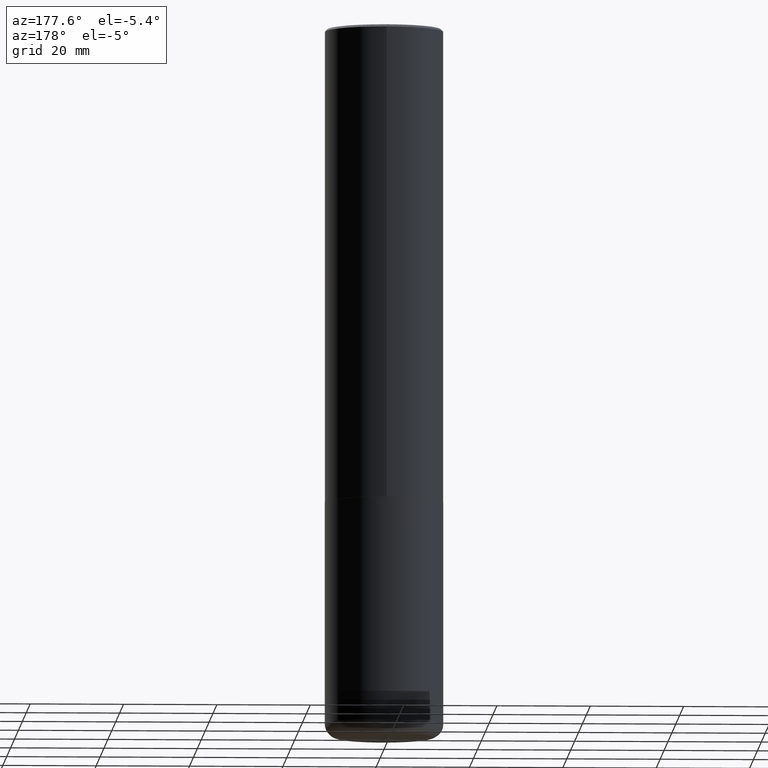
[diagram: clean part render]
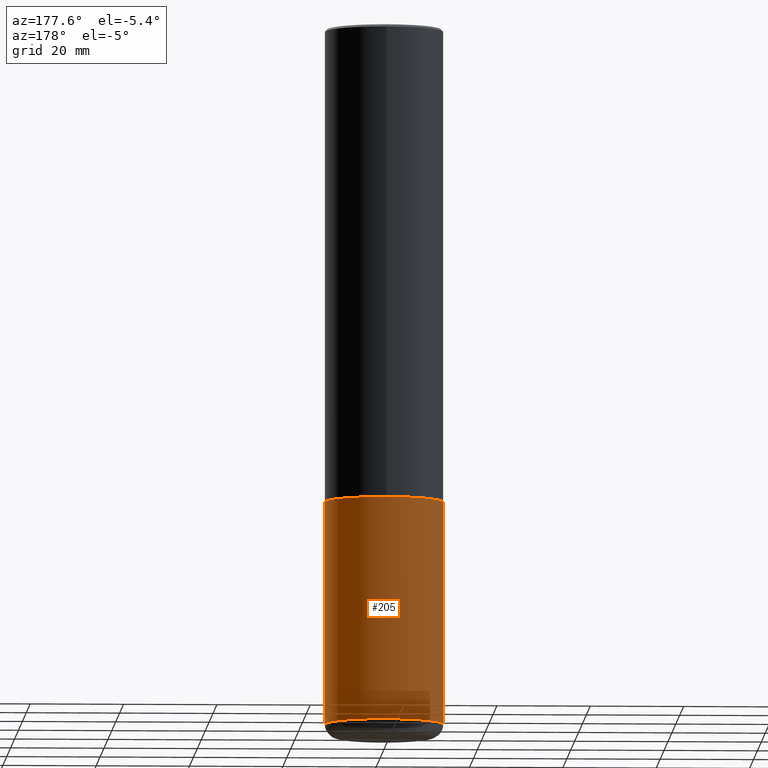
[diagram: same view with one face highlighted and labeled with its STEP entity id]
A machine part, auxiliary view. The second image highlights one B-rep face of the part: STEP entity #205.
In plain terms, the highlighted cylindrical surface (partial cylindrical patch) has radius 12.7 mm, axis along (-0, 0, 1).
Its self-contained STEP definition (entity closure, byte-faithful):
#12 = AXIS2_PLACEMENT_3D ( 'NONE', #50, #356, #73 ) ;
#21 = DIRECTION ( 'NONE',  ( -2.445468806185136597E-29, 3.491481338843145583E-15, 1.000000000000000000 ) ) ;
#40 = CIRCLE ( 'NONE', #68, 0.5000000000000000000 ) ;
#45 = EDGE_CURVE ( 'NONE', #239, #100, #370, .T. ) ;
#48 = DIRECTION ( 'NONE',  ( -2.445468806185136877E-29, 3.491481338843145188E-15, 1.000000000000000000 ) ) ;
#49 = ORIENTED_EDGE ( 'NONE', *, *, #85, .T. ) ;
#50 = CARTESIAN_POINT ( 'NONE',  ( 9.781875224740546387E-29, -1.396592535537258233E-14, -4.000000000000000000 ) ) ;
#51 = EDGE_CURVE ( 'NONE', #411, #239, #145, .T. ) ;
#59 = FACE_OUTER_BOUND ( 'NONE', #77, .T. ) ;
#64 = VERTEX_POINT ( 'NONE', #331 ) ;
#68 = AXIS2_PLACEMENT_3D ( 'NONE', #118, #184, #306 ) ;
#73 = DIRECTION ( 'NONE',  ( 1.000000000000000000, -6.982962677686266711E-15, 0.000000000000000000 ) ) ;
#77 = EDGE_LOOP ( 'NONE', ( #245, #49, #218, #273 ) ) ;
#85 = EDGE_CURVE ( 'NONE', #64, #100, #366, .T. ) ;
#98 = CARTESIAN_POINT ( 'NONE',  ( 0.5000000000000002220, -2.402139161124082943E-14, -5.880000000000000782 ) ) ;
#100 = VERTEX_POINT ( 'NONE', #296 ) ;
#118 = CARTESIAN_POINT ( 'NONE',  ( 1.437935658036860328E-28, -2.052991027239769923E-14, -5.880000000000000782 ) ) ;
#145 = LINE ( 'NONE', #177, #272 ) ;
#151 = CYLINDRICAL_SURFACE ( 'NONE', #209, 0.5000000000000000000 ) ;
#156 = CARTESIAN_POINT ( 'NONE',  ( 0.5000000000000000000, -1.745740669421571411E-14, -4.000000000000000000 ) ) ;
#177 = CARTESIAN_POINT ( 'NONE',  ( 0.5000000000000000000, -3.491481338843133355E-15, 2.438088387897967896E-29 ) ) ;
#180 = VECTOR ( 'NONE', #48, 39.37007874015748143 ) ;
#184 = DIRECTION ( 'NONE',  ( -2.445468806185136597E-29, 3.491481338843145583E-15, 1.000000000000000000 ) ) ;
#205 = ADVANCED_FACE ( 'NONE', ( #59 ), #151, .T. ) ;
#209 = AXIS2_PLACEMENT_3D ( 'NONE', #303, #21, #405 ) ;
#218 = ORIENTED_EDGE ( 'NONE', *, *, #45, .F. ) ;
#230 = DIRECTION ( 'NONE',  ( -2.445468806185136877E-29, 3.491481338843145188E-15, 1.000000000000000000 ) ) ;
#239 = VERTEX_POINT ( 'NONE', #156 ) ;
#245 = ORIENTED_EDGE ( 'NONE', *, *, #317, .T. ) ;
#272 = VECTOR ( 'NONE', #230, 39.37007874015748143 ) ;
#273 = ORIENTED_EDGE ( 'NONE', *, *, #51, .F. ) ;
#296 = CARTESIAN_POINT ( 'NONE',  ( -0.5000000000000000000, -1.369520413508463906E-14, -4.000000000000000000 ) ) ;
#303 = CARTESIAN_POINT ( 'NONE',  ( 0.000000000000000000, 0.000000000000000000, 0.000000000000000000 ) ) ;
#306 = DIRECTION ( 'NONE',  ( 1.000000000000000000, -6.982962677686262766E-15, 0.000000000000000000 ) ) ;
#317 = EDGE_CURVE ( 'NONE', #411, #64, #40, .T. ) ;
#326 = CARTESIAN_POINT ( 'NONE',  ( -0.5000000000000000000, 3.552713678800500929E-15, -2.459467545127452891E-29 ) ) ;
#331 = CARTESIAN_POINT ( 'NONE',  ( -0.5000000000000002220, -1.697719659359719514E-14, -5.880000000000000782 ) ) ;
#356 = DIRECTION ( 'NONE',  ( -2.445468806185136597E-29, 3.491481338843145583E-15, 1.000000000000000000 ) ) ;
#366 = LINE ( 'NONE', #326, #180 ) ;
#370 = CIRCLE ( 'NONE', #12, 0.5000000000000000000 ) ;
#405 = DIRECTION ( 'NONE',  ( 1.000000000000000000, -6.982962677686266711E-15, 4.876176775795935793E-29 ) ) ;
#411 = VERTEX_POINT ( 'NONE', #98 ) ;